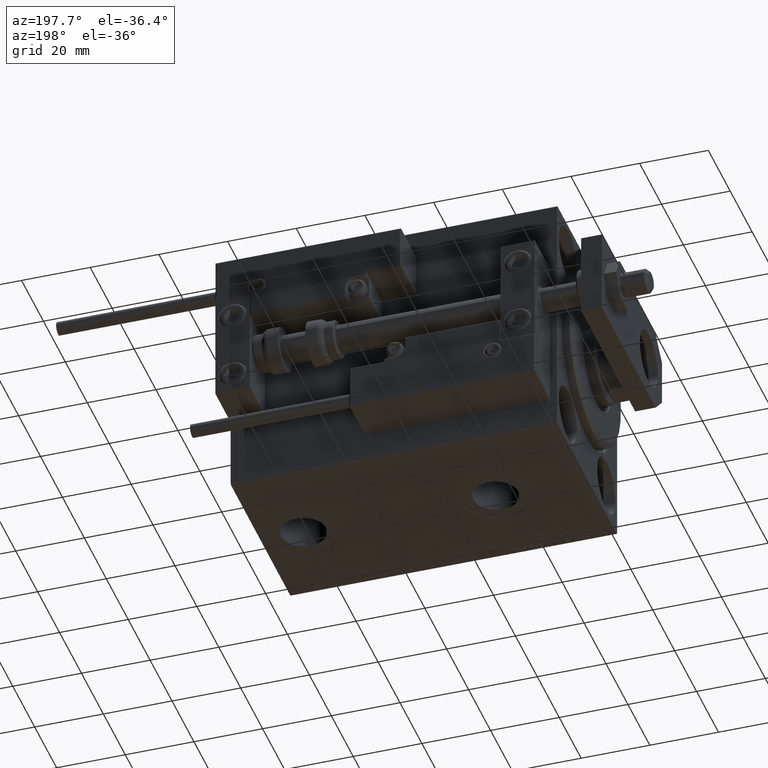
[diagram: clean part render]
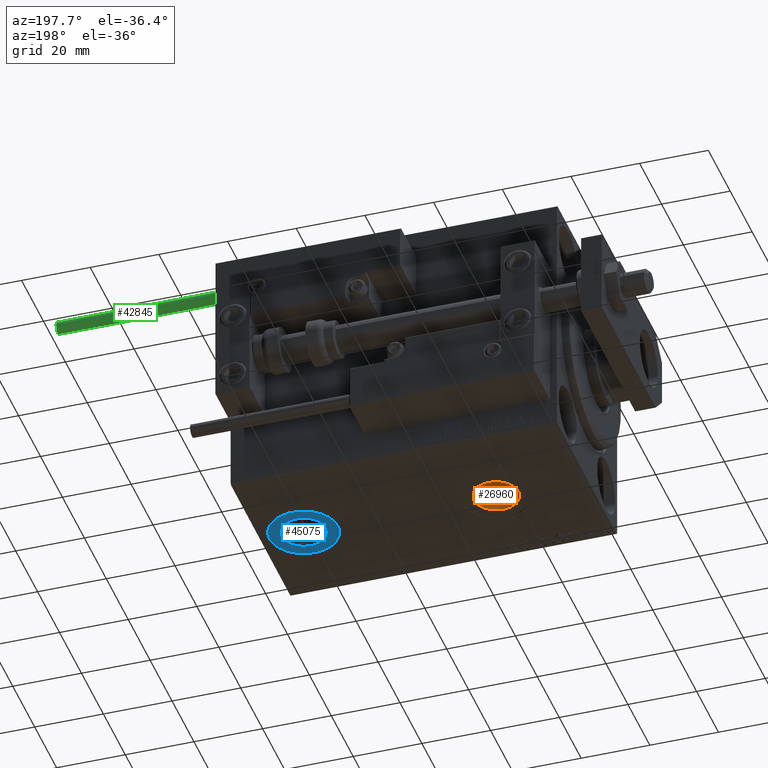
[diagram: same view with three faces highlighted in distinct colors, each labeled with its STEP entity id]
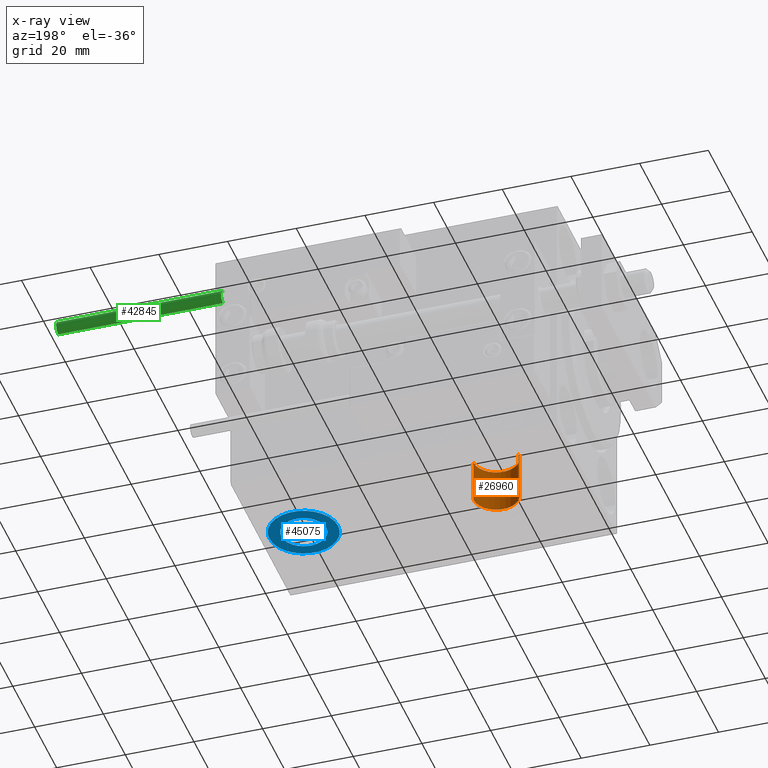
[diagram: x-ray of the same camera — body ghosted, the three highlighted faces saturated]
A machine part, auxiliary view with three faces highlighted in distinct colors.
The next image is the same camera in x-ray (body ghosted, the three faces saturated) — at least one of them is partly hidden behind the body in this view.
Their STEP definitions:

[orange] entity #26960 — the highlighted cylindrical surface (edge-blend (fillet) strip) has radius 6.58 mm, axis along (-0, -0, -1).
#263 = ORIENTED_EDGE ( 'NONE', *, *, #42585, .T. ) ;
#643 = CARTESIAN_POINT ( 'NONE',  ( 33.07999999999999829, -1.921168617569957634E-15, -24.49999999999999289 ) ) ;
#5787 = CARTESIAN_POINT ( 'NONE',  ( 19.91999999999999815, -2.726986211408916281E-15, -24.49999999999999289 ) ) ;
#5924 = DIRECTION ( 'NONE',  ( -1.000000000000000000, 0.000000000000000000, 0.000000000000000000 ) ) ;
#6493 = DIRECTION ( 'NONE',  ( -1.000000000000000000, 0.000000000000000000, 0.000000000000000000 ) ) ;
#9903 = FACE_OUTER_BOUND ( 'NONE', #37329, .T. ) ;
#10386 = VERTEX_POINT ( 'NONE', #13228 ) ;
#13228 = CARTESIAN_POINT ( 'NONE',  ( 33.07999999999999829, -1.921168617569957634E-15, -37.39999999999999858 ) ) ;
#14000 = DIRECTION ( 'NONE',  ( -1.000000000000000000, 0.000000000000000000, 0.000000000000000000 ) ) ;
#14769 = EDGE_CURVE ( 'NONE', #38633, #10386, #27086, .T. ) ;
#16326 = DIRECTION ( 'NONE',  ( -0.000000000000000000, -0.000000000000000000, -1.000000000000000000 ) ) ;
#16999 = AXIS2_PLACEMENT_3D ( 'NONE', #38222, #42126, #14000 ) ;
#17613 = LINE ( 'NONE', #33506, #33752 ) ;
#21841 = CARTESIAN_POINT ( 'NONE',  ( 26.50000000000000000, -2.726986211408916281E-15, -24.49999999999999289 ) ) ;
#23747 = VERTEX_POINT ( 'NONE', #33032 ) ;
#25816 = DIRECTION ( 'NONE',  ( -0.000000000000000000, -0.000000000000000000, -1.000000000000000000 ) ) ;
#26570 = VERTEX_POINT ( 'NONE', #5787 ) ;
#26960 = ADVANCED_FACE ( 'NONE', ( #9903 ), #30230, .F. ) ;
#27086 = LINE ( 'NONE', #38535, #38733 ) ;
#29852 = DIRECTION ( 'NONE',  ( -0.000000000000000000, -0.000000000000000000, -1.000000000000000000 ) ) ;
#30230 = CYLINDRICAL_SURFACE ( 'NONE', #51558, 6.580000000000002736 ) ;
#32167 = ORIENTED_EDGE ( 'NONE', *, *, #47314, .F. ) ;
#32806 = CIRCLE ( 'NONE', #16999, 6.580000000000002736 ) ;
#33032 = CARTESIAN_POINT ( 'NONE',  ( 19.91999999999999815, -2.726986211408916281E-15, -37.39999999999999858 ) ) ;
#33506 = CARTESIAN_POINT ( 'NONE',  ( 19.91999999999999815, -2.726986211408916281E-15, -24.49999999999999289 ) ) ;
#33752 = VECTOR ( 'NONE', #29852, 1000.000000000000000 ) ;
#35560 = ORIENTED_EDGE ( 'NONE', *, *, #46331, .F. ) ;
#37329 = EDGE_LOOP ( 'NONE', ( #32167, #43435, #263, #35560 ) ) ;
#38222 = CARTESIAN_POINT ( 'NONE',  ( 26.50000000000000000, -2.726986211408916281E-15, -37.39999999999999858 ) ) ;
#38250 = DIRECTION ( 'NONE',  ( 0.000000000000000000, 0.000000000000000000, -1.000000000000000000 ) ) ;
#38535 = CARTESIAN_POINT ( 'NONE',  ( 33.07999999999999829, -1.921168617569958028E-15, -24.49999999999999289 ) ) ;
#38633 = VERTEX_POINT ( 'NONE', #643 ) ;
#38733 = VECTOR ( 'NONE', #16326, 1000.000000000000000 ) ;
#42126 = DIRECTION ( 'NONE',  ( 0.000000000000000000, 0.000000000000000000, -1.000000000000000000 ) ) ;
#42210 = CARTESIAN_POINT ( 'NONE',  ( 26.50000000000000000, -2.726986211408916281E-15, -24.49999999999999289 ) ) ;
#42585 = EDGE_CURVE ( 'NONE', #10386, #23747, #32806, .T. ) ;
#43435 = ORIENTED_EDGE ( 'NONE', *, *, #14769, .T. ) ;
#43813 = CIRCLE ( 'NONE', #47098, 6.580000000000002736 ) ;
#46331 = EDGE_CURVE ( 'NONE', #26570, #23747, #17613, .T. ) ;
#47098 = AXIS2_PLACEMENT_3D ( 'NONE', #21841, #38250, #5924 ) ;
#47314 = EDGE_CURVE ( 'NONE', #38633, #26570, #43813, .T. ) ;
#51558 = AXIS2_PLACEMENT_3D ( 'NONE', #42210, #25816, #6493 ) ;

[blue] entity #45075 — the highlighted planar face has unit normal (0, 0, -1).
#44 = CARTESIAN_POINT ( 'NONE',  ( 82.50000000000001421, -1.099277363720772100E-14, -37.39999999999999858 ) ) ;
#4196 = DIRECTION ( 'NONE',  ( -1.000000000000000000, 0.000000000000000000, 0.000000000000000000 ) ) ;
#4731 = DIRECTION ( 'NONE',  ( 0.000000000000000000, 0.000000000000000000, -1.000000000000000000 ) ) ;
#5391 = CIRCLE ( 'NONE', #50312, 9.999999999999994671 ) ;
#6731 = ORIENTED_EDGE ( 'NONE', *, *, #17581, .T. ) ;
#9027 = FACE_OUTER_BOUND ( 'NONE', #16094, .T. ) ;
#12494 = DIRECTION ( 'NONE',  ( -1.000000000000000000, 0.000000000000000000, 0.000000000000000000 ) ) ;
#13411 = EDGE_CURVE ( 'NONE', #33346, #24272, #5391, .T. ) ;
#14596 = CIRCLE ( 'NONE', #38695, 6.580000000000002736 ) ;
#15801 = CARTESIAN_POINT ( 'NONE',  ( 89.08000000000002672, -1.018695604336876196E-14, -37.39999999999999858 ) ) ;
#16094 = EDGE_LOOP ( 'NONE', ( #6731, #39515 ) ) ;
#16204 = CARTESIAN_POINT ( 'NONE',  ( 82.50000000000001421, -1.099277363720772100E-14, -37.39999999999999858 ) ) ;
#16711 = ORIENTED_EDGE ( 'NONE', *, *, #45399, .F. ) ;
#17581 = EDGE_CURVE ( 'NONE', #24272, #33346, #22927, .T. ) ;
#19144 = DIRECTION ( 'NONE',  ( 0.000000000000000000, 0.000000000000000000, -1.000000000000000000 ) ) ;
#19154 = DIRECTION ( 'NONE',  ( -1.000000000000000000, 0.000000000000000000, -0.000000000000000000 ) ) ;
#22927 = CIRCLE ( 'NONE', #32092, 9.999999999999994671 ) ;
#24055 = DIRECTION ( 'NONE',  ( -1.000000000000000000, 0.000000000000000000, 0.000000000000000000 ) ) ;
#24272 = VERTEX_POINT ( 'NONE', #47242 ) ;
#24935 = PLANE ( 'NONE',  #28755 ) ;
#26191 = DIRECTION ( 'NONE',  ( -1.000000000000000000, 0.000000000000000000, 0.000000000000000000 ) ) ;
#28755 = AXIS2_PLACEMENT_3D ( 'NONE', #29345, #34529, #19154 ) ;
#29036 = ORIENTED_EDGE ( 'NONE', *, *, #41679, .F. ) ;
#29345 = CARTESIAN_POINT ( 'NONE',  ( 82.50000000000001421, -1.099277363720772100E-14, -37.39999999999999858 ) ) ;
#30333 = VERTEX_POINT ( 'NONE', #49042 ) ;
#30409 = CARTESIAN_POINT ( 'NONE',  ( 92.50000000000001421, -9.768126838060369520E-15, -37.39999999999999858 ) ) ;
#32092 = AXIS2_PLACEMENT_3D ( 'NONE', #44, #4731, #24055 ) ;
#32301 = CARTESIAN_POINT ( 'NONE',  ( 82.50000000000001421, -1.099277363720772100E-14, -37.39999999999999858 ) ) ;
#33259 = FACE_BOUND ( 'NONE', #41238, .T. ) ;
#33346 = VERTEX_POINT ( 'NONE', #30409 ) ;
#34529 = DIRECTION ( 'NONE',  ( 0.000000000000000000, 0.000000000000000000, -1.000000000000000000 ) ) ;
#38682 = CARTESIAN_POINT ( 'NONE',  ( 82.50000000000001421, -1.099277363720772100E-14, -37.39999999999999858 ) ) ;
#38695 = AXIS2_PLACEMENT_3D ( 'NONE', #38682, #19144, #26191 ) ;
#39515 = ORIENTED_EDGE ( 'NONE', *, *, #13411, .T. ) ;
#41047 = CIRCLE ( 'NONE', #44397, 6.580000000000002736 ) ;
#41238 = EDGE_LOOP ( 'NONE', ( #29036, #16711 ) ) ;
#41679 = EDGE_CURVE ( 'NONE', #30333, #50771, #41047, .T. ) ;
#44397 = AXIS2_PLACEMENT_3D ( 'NONE', #16204, #45079, #4196 ) ;
#45075 = ADVANCED_FACE ( 'NONE', ( #33259, #9027 ), #24935, .T. ) ;
#45079 = DIRECTION ( 'NONE',  ( 0.000000000000000000, 0.000000000000000000, -1.000000000000000000 ) ) ;
#45399 = EDGE_CURVE ( 'NONE', #50771, #30333, #14596, .T. ) ;
#47242 = CARTESIAN_POINT ( 'NONE',  ( 72.50000000000002842, -1.099277363720772100E-14, -37.39999999999999858 ) ) ;
#48179 = DIRECTION ( 'NONE',  ( 0.000000000000000000, 0.000000000000000000, -1.000000000000000000 ) ) ;
#49042 = CARTESIAN_POINT ( 'NONE',  ( 75.92000000000001592, -1.099277363720772100E-14, -37.39999999999999858 ) ) ;
#50312 = AXIS2_PLACEMENT_3D ( 'NONE', #32301, #48179, #12494 ) ;
#50771 = VERTEX_POINT ( 'NONE', #15801 ) ;

[green] entity #42845 — the highlighted cylindrical surface (edge-blend (fillet) strip) has radius 1.9 mm, axis along (-1, -0, 0).
#156 = VECTOR ( 'NONE', #28723, 1000.000000000000000 ) ;
#1784 = AXIS2_PLACEMENT_3D ( 'NONE', #41888, #46301, #6168 ) ;
#2508 = ORIENTED_EDGE ( 'NONE', *, *, #25272, .T. ) ;
#4215 = CARTESIAN_POINT ( 'NONE',  ( 1.899999999999999467, 2.326828918379970872E-16, 48.00000000000000000 ) ) ;
#4937 = EDGE_CURVE ( 'NONE', #14454, #43481, #41730, .T. ) ;
#6168 = DIRECTION ( 'NONE',  ( 1.000000000000000000, 0.000000000000000000, 0.000000000000000000 ) ) ;
#6394 = EDGE_CURVE ( 'NONE', #43481, #27408, #13581, .T. ) ;
#13507 = CARTESIAN_POINT ( 'NONE',  ( -1.899999999999999467, 0.000000000000000000, 0.000000000000000000 ) ) ;
#13581 = LINE ( 'NONE', #49022, #156 ) ;
#14454 = VERTEX_POINT ( 'NONE', #26881 ) ;
#15723 = CIRCLE ( 'NONE', #20698, 1.899999999999999467 ) ;
#16591 = FACE_OUTER_BOUND ( 'NONE', #39865, .T. ) ;
#17589 = EDGE_CURVE ( 'NONE', #14454, #20722, #27958, .T. ) ;
#20698 = AXIS2_PLACEMENT_3D ( 'NONE', #26163, #45942, #34493 ) ;
#20722 = VERTEX_POINT ( 'NONE', #49507 ) ;
#21000 = DIRECTION ( 'NONE',  ( -0.000000000000000000, -0.000000000000000000, -1.000000000000000000 ) ) ;
#21156 = ORIENTED_EDGE ( 'NONE', *, *, #17589, .T. ) ;
#24161 = CYLINDRICAL_SURFACE ( 'NONE', #32846, 1.899999999999999467 ) ;
#25272 = EDGE_CURVE ( 'NONE', #20722, #27408, #15723, .T. ) ;
#26163 = CARTESIAN_POINT ( 'NONE',  ( 0.000000000000000000, 0.000000000000000000, 0.000000000000000000 ) ) ;
#26881 = CARTESIAN_POINT ( 'NONE',  ( 1.899999999999999467, 2.326828918379970872E-16, 48.00000000000000000 ) ) ;
#27408 = VERTEX_POINT ( 'NONE', #13507 ) ;
#27958 = LINE ( 'NONE', #4215, #29583 ) ;
#28723 = DIRECTION ( 'NONE',  ( -0.000000000000000000, -0.000000000000000000, -1.000000000000000000 ) ) ;
#29583 = VECTOR ( 'NONE', #36033, 1000.000000000000000 ) ;
#32232 = DIRECTION ( 'NONE',  ( -1.000000000000000000, 0.000000000000000000, 0.000000000000000000 ) ) ;
#32846 = AXIS2_PLACEMENT_3D ( 'NONE', #40047, #21000, #32232 ) ;
#34250 = ORIENTED_EDGE ( 'NONE', *, *, #4937, .F. ) ;
#34493 = DIRECTION ( 'NONE',  ( 1.000000000000000000, 0.000000000000000000, 0.000000000000000000 ) ) ;
#36033 = DIRECTION ( 'NONE',  ( -0.000000000000000000, -0.000000000000000000, -1.000000000000000000 ) ) ;
#36199 = ORIENTED_EDGE ( 'NONE', *, *, #6394, .F. ) ;
#39865 = EDGE_LOOP ( 'NONE', ( #34250, #21156, #2508, #36199 ) ) ;
#40047 = CARTESIAN_POINT ( 'NONE',  ( 0.000000000000000000, 0.000000000000000000, 48.00000000000000000 ) ) ;
#40436 = CARTESIAN_POINT ( 'NONE',  ( -1.899999999999999467, 0.000000000000000000, 48.00000000000000000 ) ) ;
#41730 = CIRCLE ( 'NONE', #1784, 1.899999999999999467 ) ;
#41888 = CARTESIAN_POINT ( 'NONE',  ( 0.000000000000000000, 0.000000000000000000, 48.00000000000000000 ) ) ;
#42845 = ADVANCED_FACE ( 'NONE', ( #16591 ), #24161, .T. ) ;
#43481 = VERTEX_POINT ( 'NONE', #40436 ) ;
#45942 = DIRECTION ( 'NONE',  ( 0.000000000000000000, 0.000000000000000000, 1.000000000000000000 ) ) ;
#46301 = DIRECTION ( 'NONE',  ( 0.000000000000000000, 0.000000000000000000, 1.000000000000000000 ) ) ;
#49022 = CARTESIAN_POINT ( 'NONE',  ( -1.899999999999999467, 0.000000000000000000, 48.00000000000000000 ) ) ;
#49507 = CARTESIAN_POINT ( 'NONE',  ( 1.899999999999999467, 2.326828918379970872E-16, 0.000000000000000000 ) ) ;